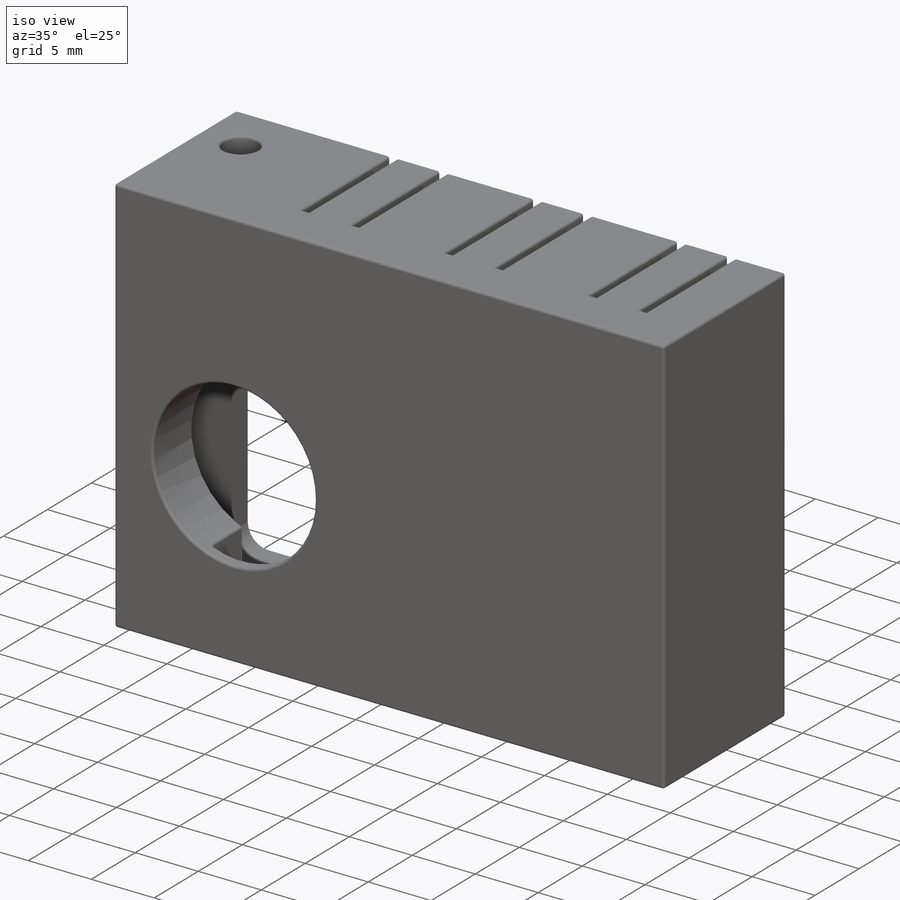
[diagram: iso view]
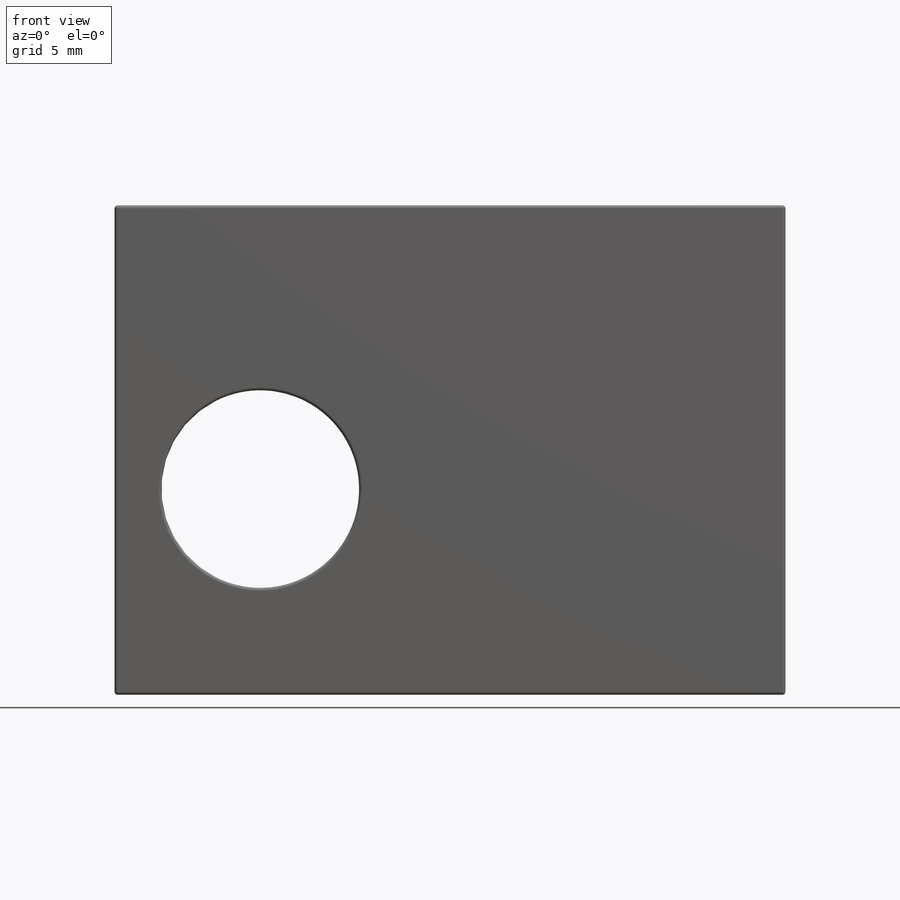
[diagram: front view]
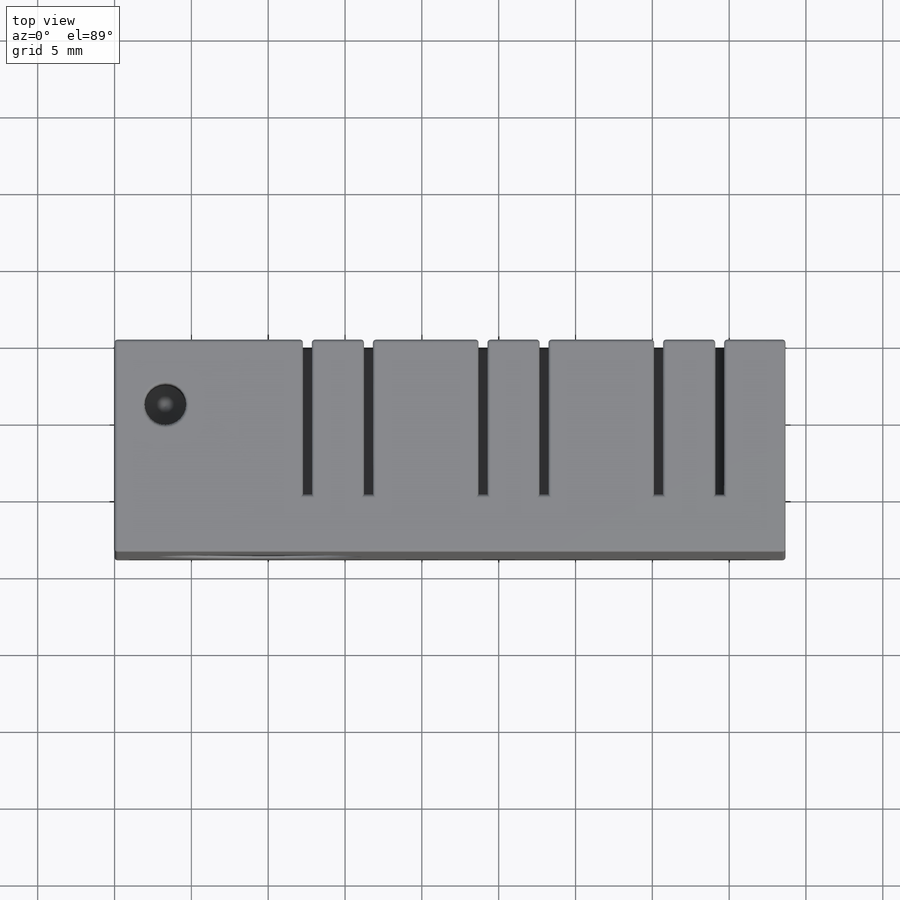
[diagram: top view]
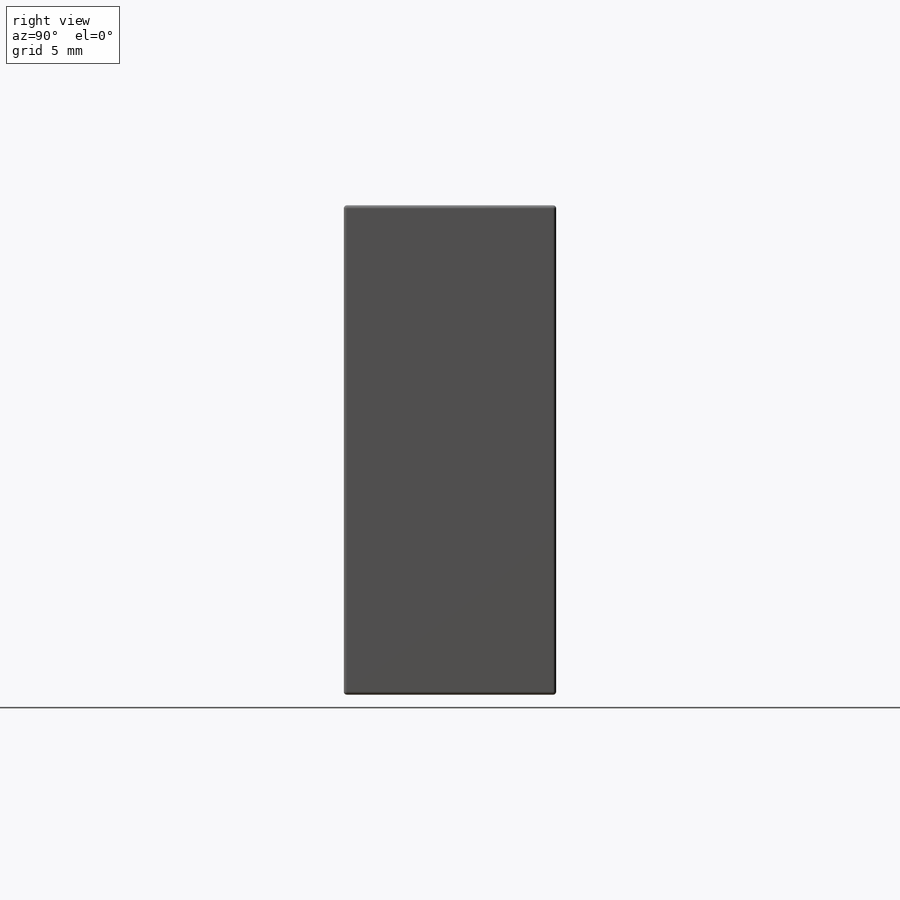
[diagram: right view]
SOLIDWORKS PART (.sldprt)
format: sldprt  version: not decoded by parser v0  size: 680,448 bytes
history: native  units: mm
features: sketch x11, cut_extrude x5, fillet x4, extrude x3, material x1, hole x1, thread x1 (+17 scaffold rows collapsed)
feature tree (43):
  scaffold x17  (default folders/planes/origin — collapsed)
  material  "ABS"
  sketch  "Sketch1"  dims[D1=43.6626mm D2=31.8516mm]
  extrude  "Extrude1"  Depth=13.8176mm
  sketch  "Sketch2"  dims[c1.D3=12.8778mm c1.D1=3.048mm c1.D2=3.048mm c2.D1=6.9469mm]
  cut_extrude  "Extrude2"  [1 undecoded]
  sketch  "Sketch4"  dims[D1=1.016mm D2=2.3749mm D3=7.0612mm D4=9.4615mm D5=9.2075mm D6=4.0132mm]
  cut_extrude  "Extrude3"  Depth=1.016mm
  fillet  "Fillet1"  Radius=1.5875mm
  fillet  "Fillet2"  Radius=1.5875mm
  sketch  "Sketch6"  dims[D2=3.9878mm D1=0.5842mm]
  cut_extrude  "Extrude4"  Depth=3.7211mm
  sketch  "Sketch9"  dims[D1=2.54mm D2=0.762mm]
  cut_extrude  "Extrude6"  Depth=4.064mm
  sketch  "Sketch10"  dims[D1=3.302mm D2=4.2037mm]
  hole  "#6-32 Tapped Hole1"  Diameter=2.7051mm Depth=7.62mm
  sketch  "3DSketch1"
  sketch  "Sketch11"  dims[hole-wizard template sketch: 47 standard entries collapsed; hole parameters kept: c15.Tap Drill Depth=7.62mm c15.D3=~14.816244mm c15.Drill Angle=118.0deg]
  thread  "Hole Thread1"  Diameter=7.0104mm  [1 undecoded]
  sketch  "Sketch12"  dims[D3=3.175mm D5=3.175mm D1=1.27mm D2=6.35mm D4=6.35mm]
  cut_extrude  "Extrude7"  [1 undecoded]
  sketch  "Sketch13"  dims[D1=6.985mm]
  extrude  "Extrude8"  Depth=4.3688mm
  sketch  "Sketch14"
  extrude  "Extrude9"  Depth=4.3688mm
  fillet  "Fillet3"  Radius=0.198437mm
  fillet  "Fillet4"  Radius=0.198437mm
decode coverage: 21 of 25 modeling features carry decoded parameters
note: ~ marks probable driven/reference dimensions
note: 3 parameter values undecoded
note: suppression state not decoded; provenance and decode notes live in map.json
